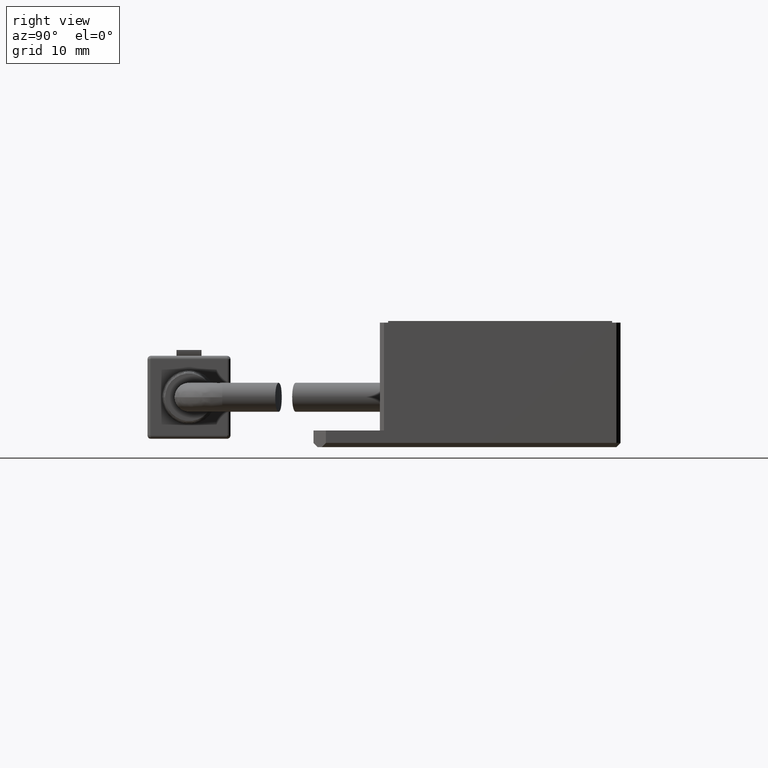
[diagram: clean part render]
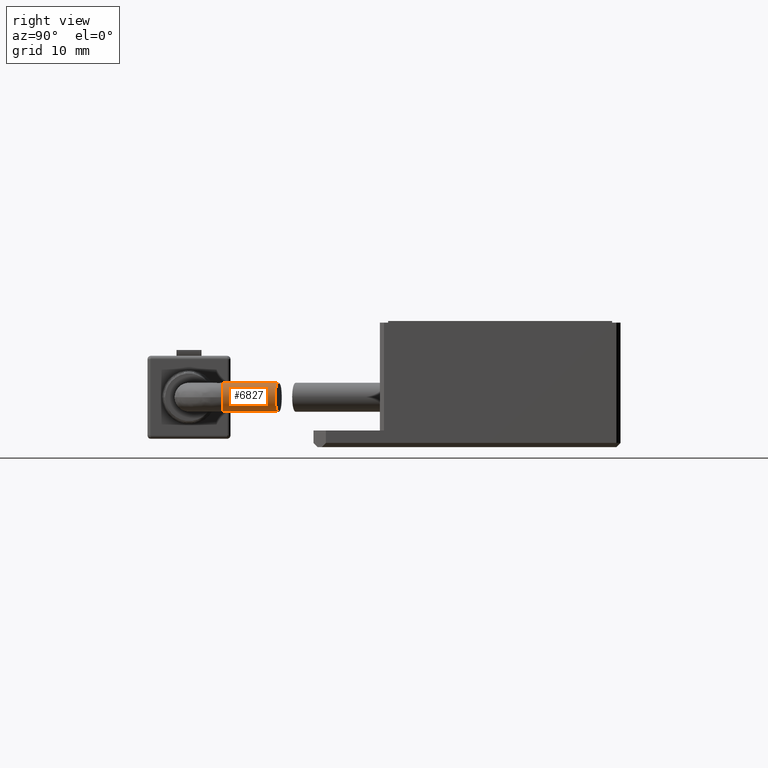
[diagram: same view with one face highlighted and labeled with its STEP entity id]
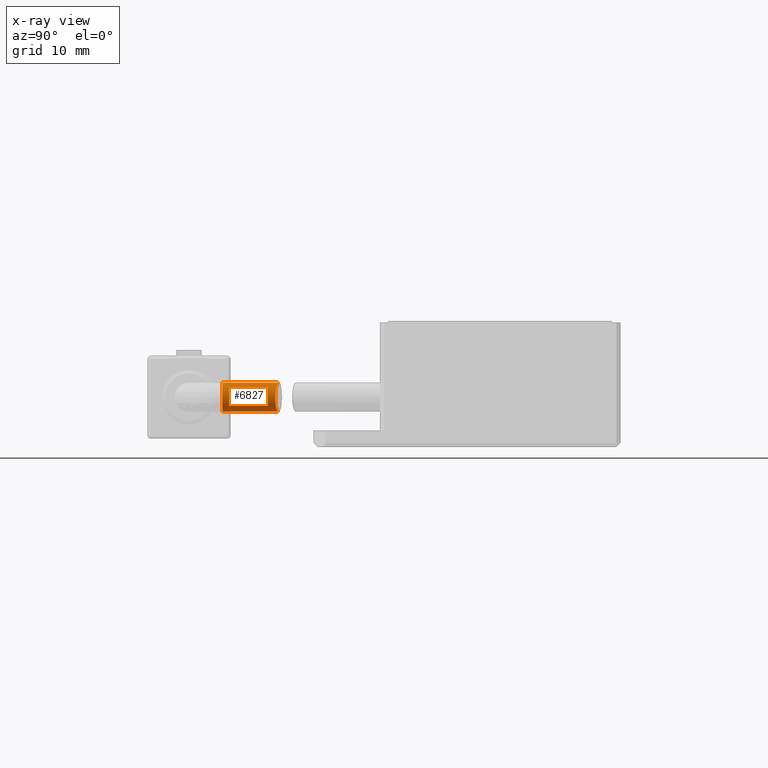
[diagram: x-ray of the same camera — body ghosted, the highlighted face saturated]
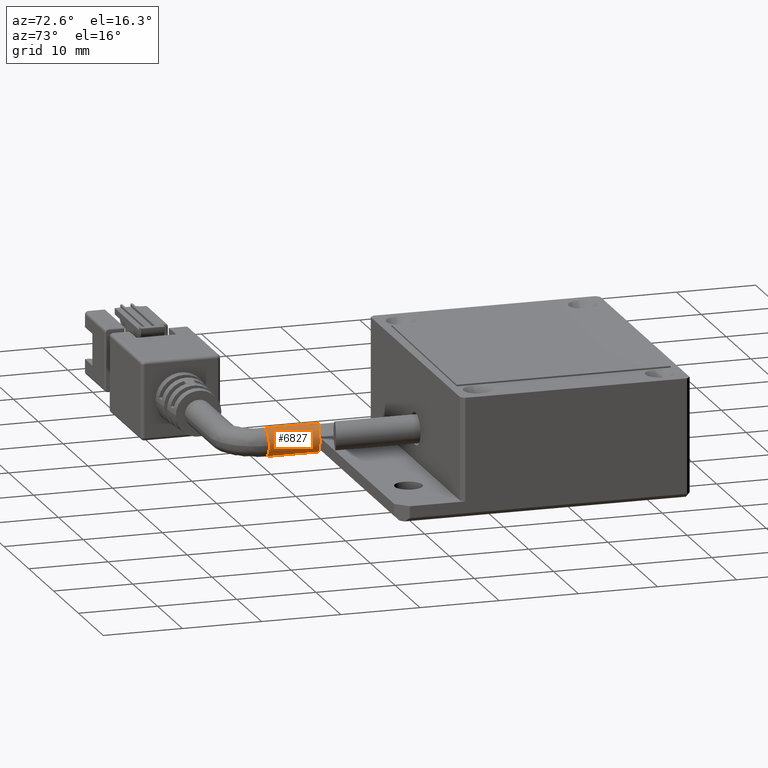
[diagram: same view with one face highlighted and labeled with its STEP entity id]
A machine part, right view. The second image highlights one B-rep face of the part: STEP entity #6827.
The next image is the same camera in x-ray: the body ghosted, the highlighted face saturated — about 0% of this face is hidden behind the body in this view.
A second angle (auxiliary view) of the same face is appended — the face is thin or edge-on in the first view.
In plain terms, the highlighted cylindrical surface (edge-blend (fillet) strip) has radius 1.75 mm, axis along (-0, 1, 0).
Its self-contained STEP definition (entity closure, byte-faithful):
#1049 = ORIENTED_EDGE ( 'NONE', *, *, #20340, .F. ) ;
#1932 = CARTESIAN_POINT ( 'NONE',  ( 2.038883117595164100, -27.62558413327445100, 3.214978510470042100 ) ) ;
#2020 = CARTESIAN_POINT ( 'NONE',  ( 1.339041789660078600, -27.47144249805376500, 5.523547884711448800 ) ) ;
#2655 = DIRECTION ( 'NONE',  ( -1.836970198721029700E-016, -1.000000000000000000, 1.232595164407830900E-032 ) ) ;
#3055 = ORIENTED_EDGE ( 'NONE', *, *, #8379, .T. ) ;
#3812 = CIRCLE ( 'NONE', #15268, 1.749999999999999800 ) ;
#3886 = VERTEX_POINT ( 'NONE', #21143 ) ;
#3988 = CARTESIAN_POINT ( 'NONE',  ( 2.220350033652276800, -27.66153725950757200, 3.766936456401981800 ) ) ;
#4086 = CARTESIAN_POINT ( 'NONE',  ( 0.9219955632094954900, -27.37147827352871600, 5.705941655460136100 ) ) ;
#4802 = CARTESIAN_POINT ( 'NONE',  ( 0.4705994654448236700, -34.05364642993505000, 3.999999999983630400 ) ) ;
#5495 = LINE ( 'NONE', #7997, #21229 ) ;
#5976 = CARTESIAN_POINT ( 'NONE',  ( 0.9164837803469829700, -27.36970696434416400, 2.304037115471747800 ) ) ;
#6053 = CARTESIAN_POINT ( 'NONE',  ( 2.209167579536794900, -27.65939197745179700, 4.230997712117315700 ) ) ;
#6151 = CARTESIAN_POINT ( 'NONE',  ( 0.4705994654448241200, -27.25921603604883000, 5.749999999983630900 ) ) ;
#6315 = B_SPLINE_CURVE_WITH_KNOTS ( 'NONE', 3,
 ( #18303, #10017, #7957, #5976, #20355, #8049, #22382, #10107, #24424, #12197, #26479, #14241, #1932, #16296, #3988, #18389, #6053, #20441, #8146, #22485, #10198, #24500, #12290, #26561, #14324, #2020, #16387, #4086, #18475, #6151 ),
 .UNSPECIFIED., .F., .F.,
 ( 4, 2, 2, 2, 2, 2, 2, 2, 2, 2, 2, 2, 2, 2, 4 ),
 ( 0.0000000000000000000, 0.0003464661066151884900, 0.0006929322132303769800, 0.001039398319845565600, 0.001385864426460754000, 0.001732330533075942400, 0.002078796639691131200, 0.002771728852921509200, 0.003118194959536697400, 0.003464661066151884700, 0.003811127172767072900, 0.004157593279382260600, 0.004504059385997448800, 0.004850525492612636900, 0.005543457705843009800 ),
 .UNSPECIFIED. ) ;
#6827 = ADVANCED_FACE ( 'NONE', ( #16394 ), #19311, .T. ) ;
#6867 = DIRECTION ( 'NONE',  ( 1.000000000000000000, 0.0000000000000000000, 0.0000000000000000000 ) ) ;
#6913 = CARTESIAN_POINT ( 'NONE',  ( 0.4705994654448236700, -34.05364642993505000, 2.249999999983630000 ) ) ;
#7152 = DIRECTION ( 'NONE',  ( -6.162975822039154700E-033, 1.000000000000000000, 0.0000000000000000000 ) ) ;
#7576 = CARTESIAN_POINT ( 'NONE',  ( 0.4705994654448236700, -34.05364642993505000, 3.999999999983630400 ) ) ;
#7957 = CARTESIAN_POINT ( 'NONE',  ( 0.6961282057914959200, -27.31529450110374700, 2.260965867139977700 ) ) ;
#7997 = CARTESIAN_POINT ( 'NONE',  ( 0.4705994654448236700, -34.05364642993505000, 2.249999999983630400 ) ) ;
#8049 = CARTESIAN_POINT ( 'NONE',  ( 1.236408639808839900, -27.44717829108618500, 2.422361417242743900 ) ) ;
#8146 = CARTESIAN_POINT ( 'NONE',  ( 2.129578422622142600, -27.64382398856169900, 4.568937147663766600 ) ) ;
#8379 = EDGE_CURVE ( 'NONE', #17033, #10869, #6315, .T. ) ;
#8475 = AXIS2_PLACEMENT_3D ( 'NONE', #7576, #21896, #17915 ) ;
#8757 = EDGE_CURVE ( 'NONE', #3886, #10869, #13932, .T. ) ;
#9710 = CARTESIAN_POINT ( 'NONE',  ( 0.4705994654448236700, -27.25921603604882600, 2.249999999983630000 ) ) ;
#10017 = CARTESIAN_POINT ( 'NONE',  ( 0.5842705167831494500, -27.28744570665380900, 2.249999999983630400 ) ) ;
#10059 = DIRECTION ( 'NONE',  ( -6.162975822039154700E-033, 1.000000000000000000, 0.0000000000000000000 ) ) ;
#10107 = CARTESIAN_POINT ( 'NONE',  ( 1.526263148372569900, -27.51477043832147400, 2.599654772636150700 ) ) ;
#10198 = CARTESIAN_POINT ( 'NONE',  ( 1.984257277988099100, -27.61443294283117600, 4.885738318714003500 ) ) ;
#10199 = CARTESIAN_POINT ( 'NONE',  ( 2.220599465444822700, -34.05364642993505000, 3.999999999983630400 ) ) ;
#10869 = VERTEX_POINT ( 'NONE', #16962 ) ;
#12118 = CIRCLE ( 'NONE', #25854, 1.749999999999999800 ) ;
#12197 = CARTESIAN_POINT ( 'NONE',  ( 1.779946968896074100, -27.57120458288233100, 2.833290574326269100 ) ) ;
#12290 = CARTESIAN_POINT ( 'NONE',  ( 1.782228810763843800, -27.57170239270458700, 5.164266606667809800 ) ) ;
#13058 = VERTEX_POINT ( 'NONE', #6913 ) ;
#13932 = LINE ( 'NONE', #15408, #18764 ) ;
#14241 = CARTESIAN_POINT ( 'NONE',  ( 1.982901576065600600, -27.61415427131332800, 3.111885552640538700 ) ) ;
#14324 = CARTESIAN_POINT ( 'NONE',  ( 1.528620310074500600, -27.51530742273378400, 5.398564306648186300 ) ) ;
#14837 = ORIENTED_EDGE ( 'NONE', *, *, #18818, .T. ) ;
#14966 = CARTESIAN_POINT ( 'NONE',  ( 0.4705994654448236700, -34.05364642993505000, 3.999999999983630400 ) ) ;
#15268 = AXIS2_PLACEMENT_3D ( 'NONE', #14966, #2655, #17046 ) ;
#15408 = CARTESIAN_POINT ( 'NONE',  ( 0.4705994654448234500, -34.05364642993505000, 5.749999999983630000 ) ) ;
#16168 = EDGE_LOOP ( 'NONE', ( #25864, #1049, #21017, #14837, #3055 ) ) ;
#16296 = CARTESIAN_POINT ( 'NONE',  ( 2.172950268146931900, -27.65255147090966400, 3.533533329212762200 ) ) ;
#16387 = CARTESIAN_POINT ( 'NONE',  ( 1.237130582987084900, -27.44734975123039100, 5.577277365598583000 ) ) ;
#16394 = FACE_OUTER_BOUND ( 'NONE', #16168, .T. ) ;
#16962 = CARTESIAN_POINT ( 'NONE',  ( 0.4705994654448241200, -27.25921603604883000, 5.749999999983630900 ) ) ;
#17033 = VERTEX_POINT ( 'NONE', #9710 ) ;
#17046 = DIRECTION ( 'NONE',  ( 1.000000000000000000, 0.0000000000000000000, 0.0000000000000000000 ) ) ;
#17915 = DIRECTION ( 'NONE',  ( 0.0000000000000000000, 0.0000000000000000000, -1.000000000000000000 ) ) ;
#18303 = CARTESIAN_POINT ( 'NONE',  ( 0.4705994654448236700, -27.25921603604882600, 2.249999999983630000 ) ) ;
#18389 = CARTESIAN_POINT ( 'NONE',  ( 2.220722665809186800, -27.66160915184166000, 4.113711037788577100 ) ) ;
#18475 = CARTESIAN_POINT ( 'NONE',  ( 0.6979579548987925300, -27.31567944683778000, 5.749999999985917900 ) ) ;
#18764 = VECTOR ( 'NONE', #7152, 1000.000000000000000 ) ;
#18818 = EDGE_CURVE ( 'NONE', #13058, #17033, #5495, .T. ) ;
#19180 = DIRECTION ( 'NONE',  ( -1.836970198721029700E-016, -1.000000000000000000, 1.232595164407830900E-032 ) ) ;
#19311 = CYLINDRICAL_SURFACE ( 'NONE', #8475, 1.749999999999999800 ) ;
#20340 = EDGE_CURVE ( 'NONE', #21635, #3886, #12118, .T. ) ;
#20355 = CARTESIAN_POINT ( 'NONE',  ( 1.026000025372330500, -27.39651587232180000, 2.336588623527107600 ) ) ;
#20441 = CARTESIAN_POINT ( 'NONE',  ( 2.163415083129049100, -27.65046615361096000, 4.458643995771961200 ) ) ;
#21017 = ORIENTED_EDGE ( 'NONE', *, *, #25046, .F. ) ;
#21143 = CARTESIAN_POINT ( 'NONE',  ( 0.4705994654448234500, -34.05364642993505000, 5.749999999983630900 ) ) ;
#21229 = VECTOR ( 'NONE', #10059, 1000.000000000000000 ) ;
#21635 = VERTEX_POINT ( 'NONE', #10199 ) ;
#21896 = DIRECTION ( 'NONE',  ( -6.162975822039154700E-033, 1.000000000000000000, 0.0000000000000000000 ) ) ;
#22382 = CARTESIAN_POINT ( 'NONE',  ( 1.336456391887951500, -27.47083564442339200, 2.474980541046171400 ) ) ;
#22485 = CARTESIAN_POINT ( 'NONE',  ( 2.040181579027411400, -27.62584854324930100, 4.782504087569869000 ) ) ;
#24424 = CARTESIAN_POINT ( 'NONE',  ( 1.616818867402533400, -27.53521795709448800, 2.672678316559652200 ) ) ;
#24500 = CARTESIAN_POINT ( 'NONE',  ( 1.855503629250926800, -27.58740402305662400, 5.075979925360083900 ) ) ;
#25046 = EDGE_CURVE ( 'NONE', #13058, #21635, #3812, .T. ) ;
#25854 = AXIS2_PLACEMENT_3D ( 'NONE', #4802, #19180, #6867 ) ;
#25864 = ORIENTED_EDGE ( 'NONE', *, *, #8757, .F. ) ;
#26479 = CARTESIAN_POINT ( 'NONE',  ( 1.853248661593073900, -27.58692454863616600, 2.921071760591324600 ) ) ;
#26561 = CARTESIAN_POINT ( 'NONE',  ( 1.617521260607704300, -27.53537837985451700, 5.326822771389914600 ) ) ;